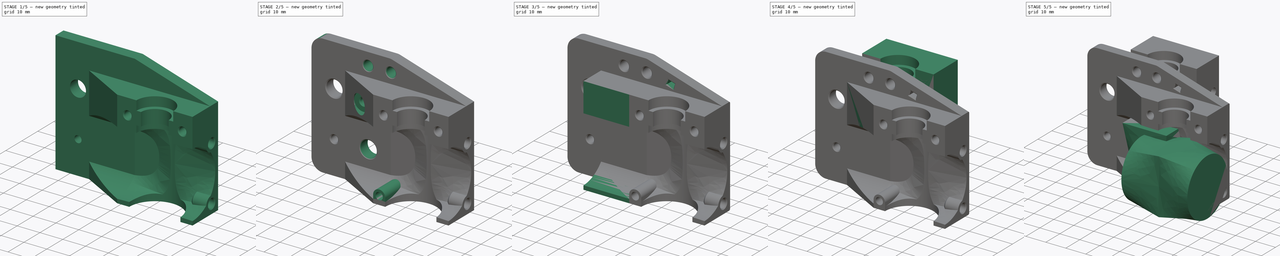
[diagram: build sequence overview — one tinted view per stage of 5, left to right]
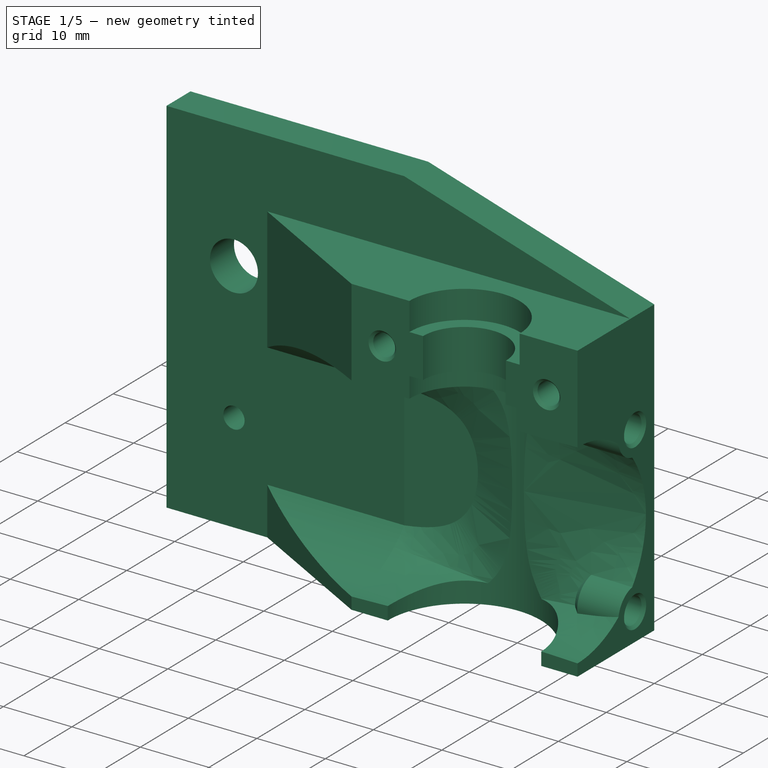
[diagram: stage 1 of 5 — iso view after this stage's code; geometry added in this stage tinted green]
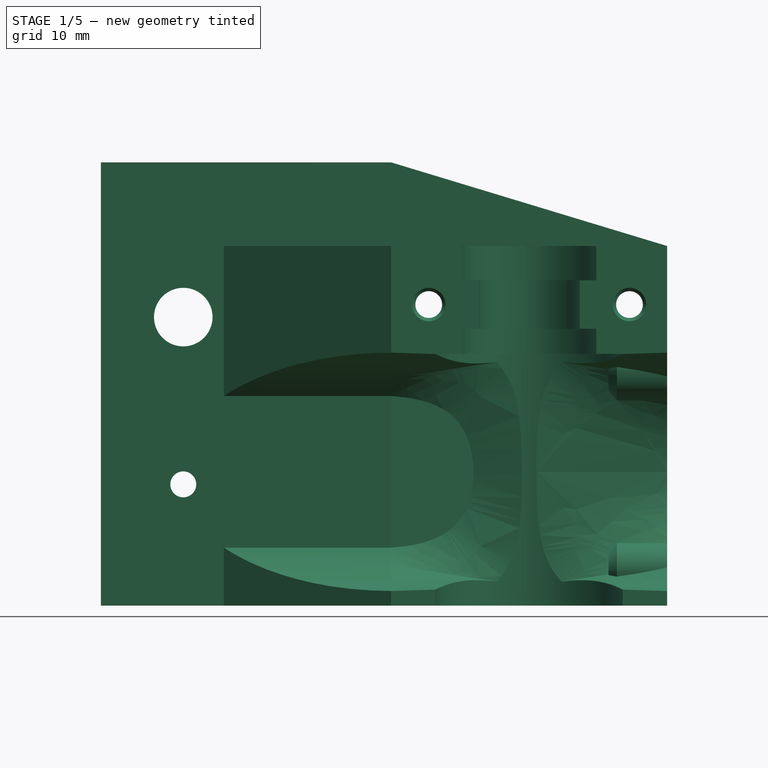
[diagram: stage 1 of 5 — front view after this stage's code; geometry added in this stage tinted green]
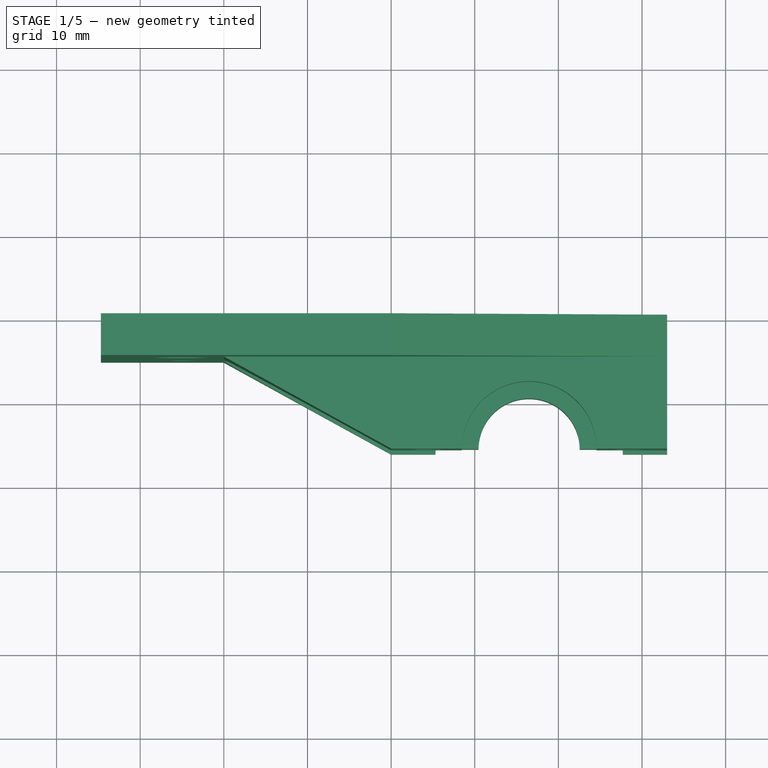
[diagram: stage 1 of 5 — top view after this stage's code; geometry added in this stage tinted green]
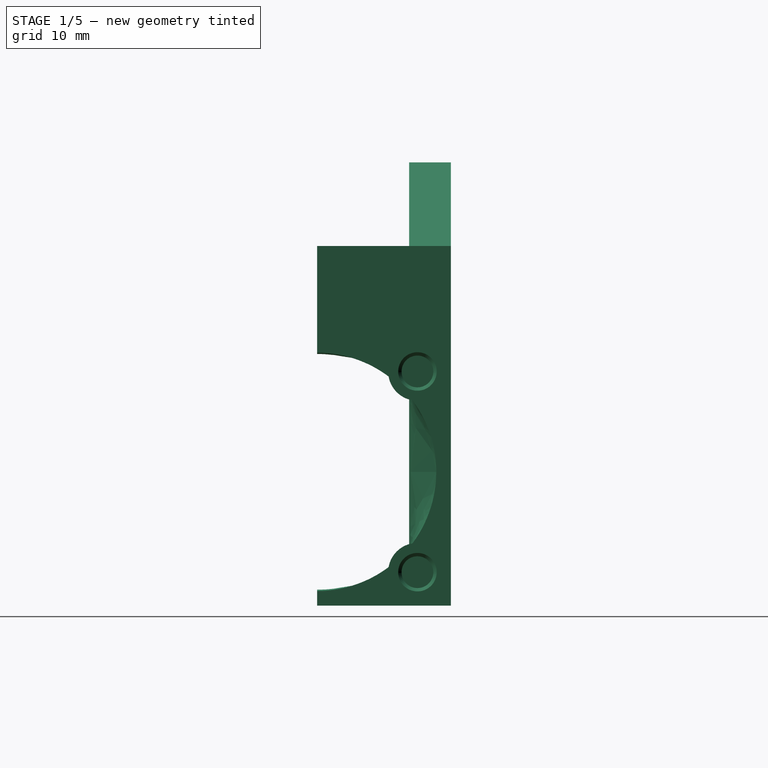
[diagram: stage 1 of 5 — right view after this stage's code; geometry added in this stage tinted green]
FCSTD DOCUMENT  (FreeCAD 0.19R24366 (Git))
Label: back-body-bowden
License: All rights reserved
LicenseURL: http://en.wikipedia.org/wiki/All_rights_reserved
objects: Sketcher::SketchObject×22, PartDesign::Pocket×16, Part::Feature×13, PartDesign::Body×7, Part::MultiFuse×5, PartDesign::Chamfer×5, PartDesign::Pad×4, PartDesign::FeatureBase×4, Part::Box×4, PartDesign::Plane×2, Part::Cut×2, Part::Chamfer×2, App::Part×1, PartDesign::AdditiveLoft×1, Part::Cylinder×1, PartDesign::Fillet×1
note: 116 computed .brp shape members not serialized (recipe doc carries the construction recipe); baked Part::Feature solids carry a one-line shape summary decoded from their .brp

FEATURE [PartDesign::Body] Body002002002
  BaseFeature = -> Body002002001
  Group = -> [BaseFeature001,Sketch015,Pocket006,Sketch016,Pocket007,Chamfer001]
  Origin = -> Origin012
  Placement = pos=(16.5,-16,-11) rot=(0,0,1;0rad)
  Tip = -> Chamfer001
FEATURE [Sketcher::SketchObject] Sketch017
  FullyConstrained = true
  MapMode = 5
  Placement = pos=(0,0,0) rot=(1,0,0;1.5708rad)
  Support = -> [XZ_Plane013]
  sketch-geometry (8):
    g0: LineSegment StartX=0 StartY=-11 StartZ=0 EndX=-34.7 EndY=-11 EndZ=0
    g1: LineSegment StartX=-34.7 StartY=-11 StartZ=0 EndX=-34.7 EndY=42 EndZ=0
    g2: LineSegment StartX=-34.7 StartY=42 StartZ=0 EndX=0 EndY=42 EndZ=0
    g3: LineSegment StartX=0 StartY=42 StartZ=0 EndX=0 EndY=-11 EndZ=0
    g4: Circle CenterX=-24.85 CenterY=23.5 CenterZ=0 NormalX=0 NormalY=0 NormalZ=1 AngleXU=0 Radius=3.5
    g5: Circle CenterX=-9.85 CenterY=23.5 CenterZ=0 NormalX=0 NormalY=0 NormalZ=1 AngleXU=0 Radius=1.55
    g6: Circle CenterX=-24.85 CenterY=3.5 CenterZ=0 NormalX=0 NormalY=0 NormalZ=1 AngleXU=0 Radius=1.55
    g7: Circle CenterX=-9.85 CenterY=3.5 CenterZ=0 NormalX=0 NormalY=0 NormalZ=1 AngleXU=0 Radius=3.5
  constraints (24):
    c: Coincident(g0,g1)
    c: Coincident(g1,g2)
    c: Coincident(g2,g3)
    c: Coincident(g3,g0)
    c: Horizontal(g0)
    c: Horizontal(g2)
    c: Vertical(g1)
    c: Vertical(g3)
    c: PointOnObject(g0,g-2)
    c: Vertical(g6,g4)
    c: Vertical(g7,g5)
    c: Horizontal(g4,g5)
    c: Horizontal(g6,g7)
    c: Equal(g4,g7)
    c: Equal(g6,g5)
    c: DistanceX(g4,g5) = 15
    c: DistanceY(g6,g4) = 20
    c: DistanceY(g-1,g7) = 3.5
    c: DistanceX(g7,g-1) = 9.85
    c: DistanceX(g2,g2) = 34.7
    c: DistanceY(g0,g-1) = 11
    c: DistanceY(g-1,g2) = 42
    c: Radius(g5) = 1.55
    c: Radius(g4) = 3.5
FEATURE [PartDesign::Pad] Pad002
  Direction = (1,1,1)
  Length = 5
  Length2 = 100
  Placement = pos=(0,0,0) rot=(1,0,0;1.5708rad)
  Profile = -> Sketch017
  Type = 0
FEATURE [PartDesign::Body] Body002002003
  Group = -> [Sketch017,Pad002]
  Origin = -> Origin013
  Tip = -> Pad002
FEATURE [Part::Feature] Body002002002001
  Placement = pos=(16.5,-16,-11) rot=(0,0,1;0rad)
  shape: bbox 33 x 27 x 43 mm, 51 faces (baked)
FEATURE [Part::MultiFuse] Fusion002
  Shapes = -> [Body002002003,Body002002002001]
FEATURE [Part::Box] Box  label="Cube"
  AttacherType = Attacher::AttachEngine3D
  Height = 19
  Length = 15
  Placement = pos=(0,-5,-4.5) rot=(0,0,1;0rad)
  Width = 5
FEATURE [Part::Chamfer] Chamfer002
  Base = -> Box
  Edges = 1 edges: [Edge5 r1=2 r2=14.99]
FEATURE [Part::MultiFuse] Fusion003
  Shapes = -> [Chamfer002,Fusion002]
FEATURE [PartDesign::Body] Body002002002002  label="side-dupporter"
  BaseFeature = -> Fusion004
  Group = -> [BaseFeature002,Sketch018,Pocket008]
  Origin = -> Origin014
  Tip = -> Pocket008
FEATURE [Part::Feature] Body002002002002001  label="side-dupporter001"
  shape: bbox 20 x 16 x 43 mm, 16 faces (baked)
FEATURE [Part::Box] Box003  label="Cube003"
  AttacherType = Attacher::AttachEngine3D
  Height = 11
  Length = 34
  Placement = pos=(-1,-5,31) rot=(0,0,1;0rad)
  Width = 5
FEATURE [Part::Chamfer] Chamfer003
  Base = -> Box003
  Edges = 1 edges: [Edge6 r1=10 r2=33]
FEATURE [Part::MultiFuse] Fusion005
  Refine = true
  Shapes = -> [Fusion003,Body002002002002001,Chamfer003]
FEATURE [PartDesign::FeatureBase] BaseFeature003
  BaseFeature = -> Fusion005
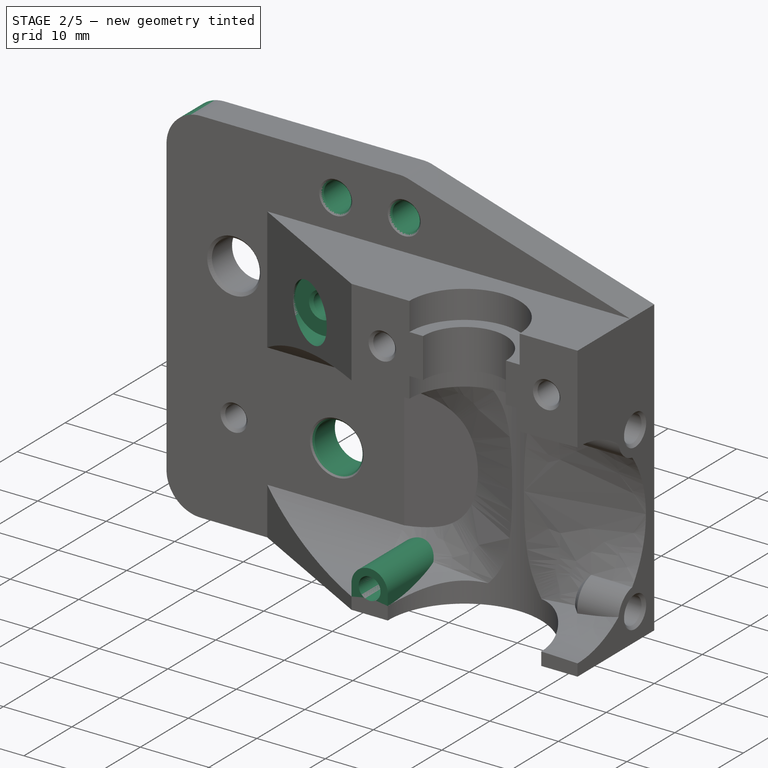
[diagram: stage 2 of 5 — iso view after this stage's code; geometry added in this stage tinted green]
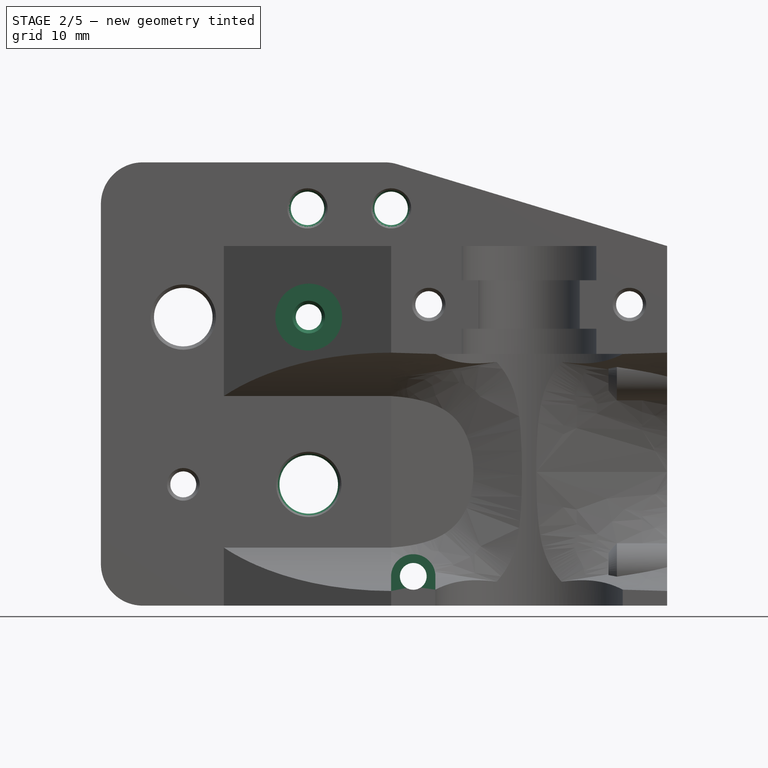
[diagram: stage 2 of 5 — front view after this stage's code; geometry added in this stage tinted green]
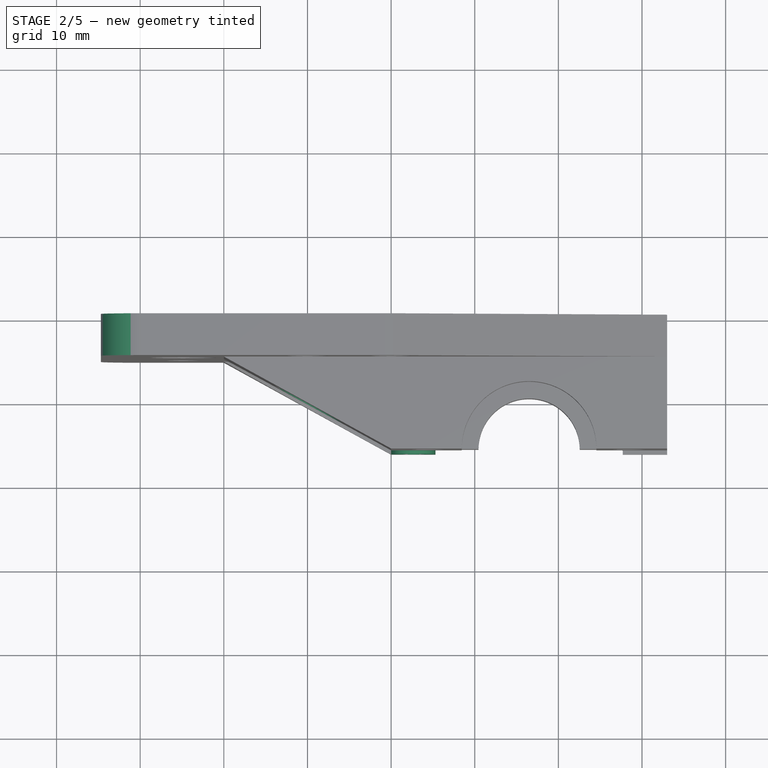
[diagram: stage 2 of 5 — top view after this stage's code; geometry added in this stage tinted green]
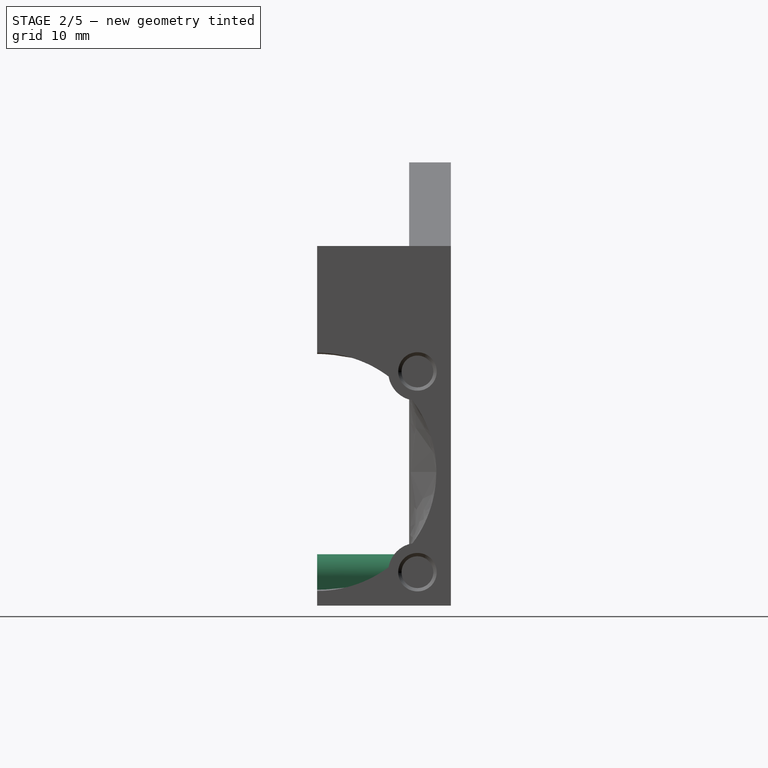
[diagram: stage 2 of 5 — right view after this stage's code; geometry added in this stage tinted green]
FEATURE [Sketcher::SketchObject] Sketch019
  ExternalGeometry = -> [BaseFeature003]
  FullyConstrained = true
  MapMode = 5
  Placement = pos=(0,0,0) rot=(0,0.707107,0.707107;3.14159rad)
  Support = -> [BaseFeature003]
  sketch-geometry (2):
    g0: Circle CenterX=9.85 CenterY=23.5 CenterZ=0 NormalX=0 NormalY=0 NormalZ=1 AngleXU=0 Radius=1.55
    g1: Circle CenterX=9.85 CenterY=3.5 CenterZ=0 NormalX=0 NormalY=0 NormalZ=1 AngleXU=0 Radius=3.5
  constraints (6):
    c: Vertical(g1,g0)
    c: Horizontal(g0,g-3)
    c: Horizontal(g1,g-4)
    c: Equal(g1,g-3)
    c: Equal(g0,g-4)
    c: DistanceX(g0,g-3) = 15
FEATURE [PartDesign::Pocket] Pocket009
  BaseFeature = -> BaseFeature003
  Length = 5
  Length2 = 100
  Profile = -> Sketch019
  Type = 1
FEATURE [PartDesign::Plane] DatumPlane001
  AttachmentOffset = pos=(0,0,8) rot=(0,0,1;0rad)
  Length = 81.1698
  MapMode = 5
  Placement = pos=(0,-8,-1.8e-15) rot=(1,0,0;1.5708rad)
  ResizeMode = 0
  Support = -> [XZ_Plane015]
  Width = 80.4698
FEATURE [Sketcher::SketchObject] Sketch020
  ExternalGeometry = -> [Pocket009]
  FullyConstrained = true
  MapMode = 5
  Placement = pos=(0,-8,-1.8e-15) rot=(1,0,0;1.5708rad)
  Support = -> [DatumPlane001]
  sketch-geometry (1):
    g0: Circle CenterX=-9.85 CenterY=23.5 CenterZ=0 NormalX=0 NormalY=0 NormalZ=1 AngleXU=0 Radius=4
  constraints (2):
    c: Coincident(g0,g-3)
    c: Radius(g0) = 4
FEATURE [PartDesign::Pocket] Pocket010
  BaseFeature = -> Pocket009
  Length = 5
  Length2 = 100
  Profile = -> Sketch020
  Reversed = true
  Type = 1
FEATURE [Sketcher::SketchObject] Sketch021
  ExternalGeometry = -> [Pocket010]
  FullyConstrained = true
  MapMode = 5
  Placement = pos=(0,-16,3.5e-15) rot=(1,0,0;1.5708rad)
  Support = -> [Pocket010]
  sketch-geometry (4):
    g0: ArcOfCircle CenterX=2.65 CenterY=-7.5 CenterZ=0 NormalX=0 NormalY=0 NormalZ=1 AngleXU=0 Radius=2.65 StartAngle=0 EndAngle=3.14159
    g1: LineSegment StartX=0 StartY=-7.5 StartZ=0 EndX=0 EndY=-11 EndZ=0
    g2: LineSegment StartX=0 StartY=-11 StartZ=0 EndX=5.3 EndY=-11 EndZ=0
    g3: LineSegment StartX=5.3 StartY=-11 StartZ=0 EndX=5.3 EndY=-7.5 EndZ=0
  constraints (12):
    c: PointOnObject(g0,g-2)
    c: Horizontal(g0,g0)
    c: Horizontal(g0,g0)
    c: Tangent(g0,g1) = -1.5708
    c: Coincident(g1,g2)
    c: PointOnObject(g2,g-3)
    c: Horizontal(g2)
    c: Coincident(g2,g3)
    c: Coincident(g3,g0)
    c: Vertical(g3)
    c: DistanceY(g0,g-1) = 7.5
    c: DistanceX(g2,g2) = 5.3
FEATURE [PartDesign::Pad] Pad003
  BaseFeature = -> Pocket010
  Direction = (1,1,1)
  Length = 10
  Length2 = 100
  Profile = -> Sketch021
  Reversed = true
  Type = 3
  UpToFace = -> Pocket010 [Face4]
FEATURE [Sketcher::SketchObject] Sketch022
  ExternalGeometry = -> [Pad003]
  FullyConstrained = true
  MapMode = 5
  Placement = pos=(0,-16,0) rot=(1,0,0;1.5708rad)
  Support = -> [Pad003]
  sketch-geometry (1):
    g0: Circle CenterX=2.65 CenterY=-7.5 CenterZ=0 NormalX=0 NormalY=0 NormalZ=1 AngleXU=0 Radius=1.6
  constraints (2):
    c: Coincident(g0,g-3)
    c: Radius(g0) = 1.6
FEATURE [PartDesign::Pocket] Pocket011
  BaseFeature = -> Pad003
  Length = 5
  Length2 = 100
  Profile = -> Sketch022
  Type = 1
FEATURE [Sketcher::SketchObject] Sketch023
  ExternalGeometry = -> [Pocket011]
  FullyConstrained = true
  MapMode = 5
  Placement = pos=(0,0,0) rot=(0,0.707107,0.707107;3.14159rad)
  Support = -> [Pocket011]
  sketch-geometry (1):
    g0: Circle CenterX=-2.65 CenterY=-7.5 CenterZ=0 NormalX=0 NormalY=0 NormalZ=1 AngleXU=0 Radius=2
  constraints (2):
    c: Coincident(g0,g-3)
    c: Radius(g0) = 2
FEATURE [PartDesign::Pocket] Pocket012
  BaseFeature = -> Pocket011
  Length = 5
  Length2 = 100
  Profile = -> Sketch023
  Type = 0
FEATURE [PartDesign::Chamfer] Chamfer004
  Angle = 45
  Base = -> Pocket012 [Edge21]
  BaseFeature = -> Pocket012
  ChamferType = 0
  FlipDirection = false
  Size = 0.4
  Size2 = 1
  SupportTransform = false
FEATURE [PartDesign::Fillet] Fillet
  Base = -> Chamfer004 [Edge18,Edge17,Edge27]
  BaseFeature = -> Chamfer004
  Radius = 5
  Refine = true
  SupportTransform = false
FEATURE [Sketcher::SketchObject] Sketch024
  FullyConstrained = true
  MapMode = 5
  Placement = pos=(-6e-16,-5,9e-16) rot=(1,0,0;1.5708rad)
  Support = -> [Fillet]
  sketch-geometry (2):
    g0: Circle CenterX=-10 CenterY=36.5 CenterZ=0 NormalX=0 NormalY=0 NormalZ=1 AngleXU=0 Radius=2
    g1: Circle CenterX=0 CenterY=36.5 CenterZ=0 NormalX=0 NormalY=0 NormalZ=1 AngleXU=0 Radius=2
  constraints (6):
    c: Equal(g1,g0)
    c: Horizontal(g0,g1)
    c: Radius(g1) = 2
    c: DistanceY(g-1,g1) = 36.5
    c: DistanceX(g1,g-1) = 0
    c: DistanceX(g0,g1) = 10
FEATURE [PartDesign::Pocket] Pocket013
  BaseFeature = -> Fillet
  Length = 5
  Length2 = 100
  Profile = -> Sketch024
  Type = 1
FEATURE [PartDesign::Chamfer] Chamfer005
  Angle = 45
  Base = -> Pocket013 [Edge51,Edge57,Edge53,Edge55,Edge58,Edge60,Edge12,Edge9,Edge10,Edge11]
  BaseFeature = -> Pocket013
  ChamferType = 0
  FlipDirection = false
  Size = 0.4
  Size2 = 1
  SupportTransform = false
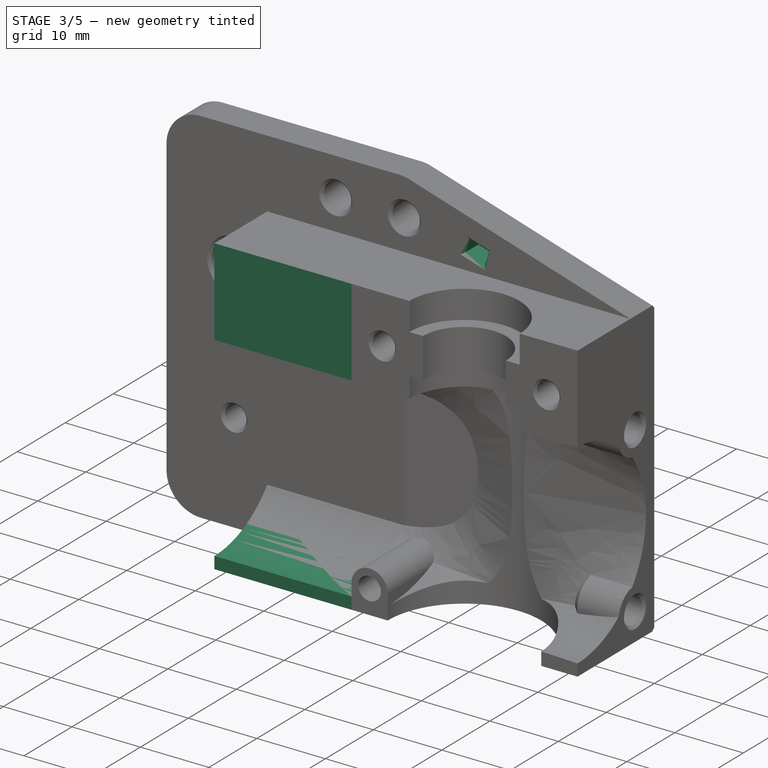
[diagram: stage 3 of 5 — iso view after this stage's code; geometry added in this stage tinted green]
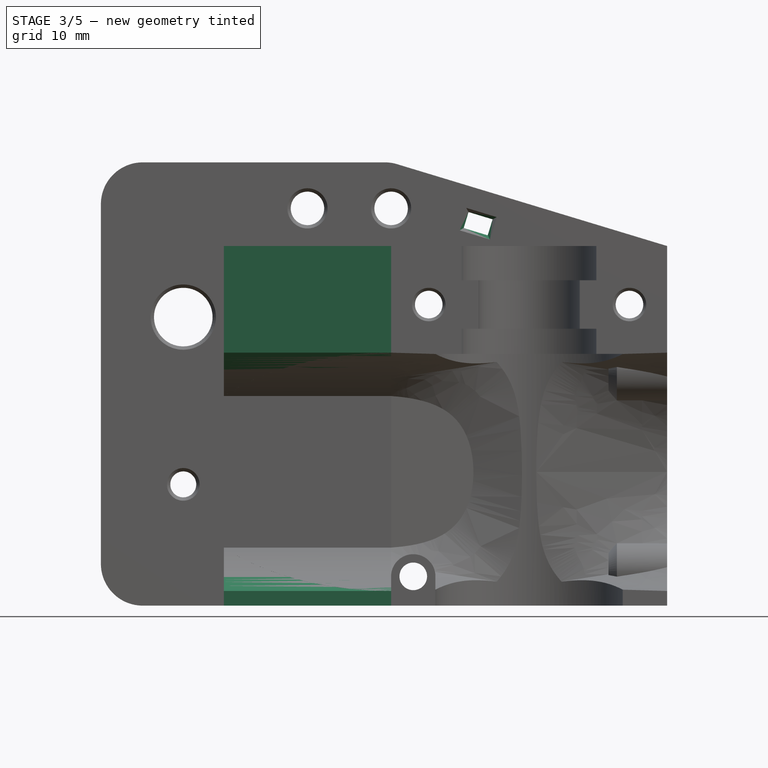
[diagram: stage 3 of 5 — front view after this stage's code; geometry added in this stage tinted green]
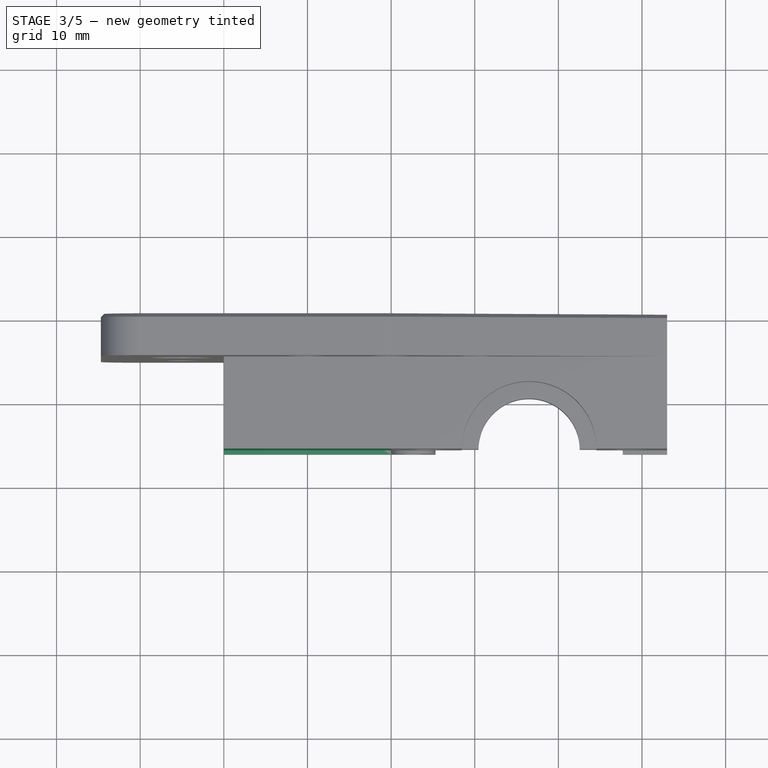
[diagram: stage 3 of 5 — top view after this stage's code; geometry added in this stage tinted green]
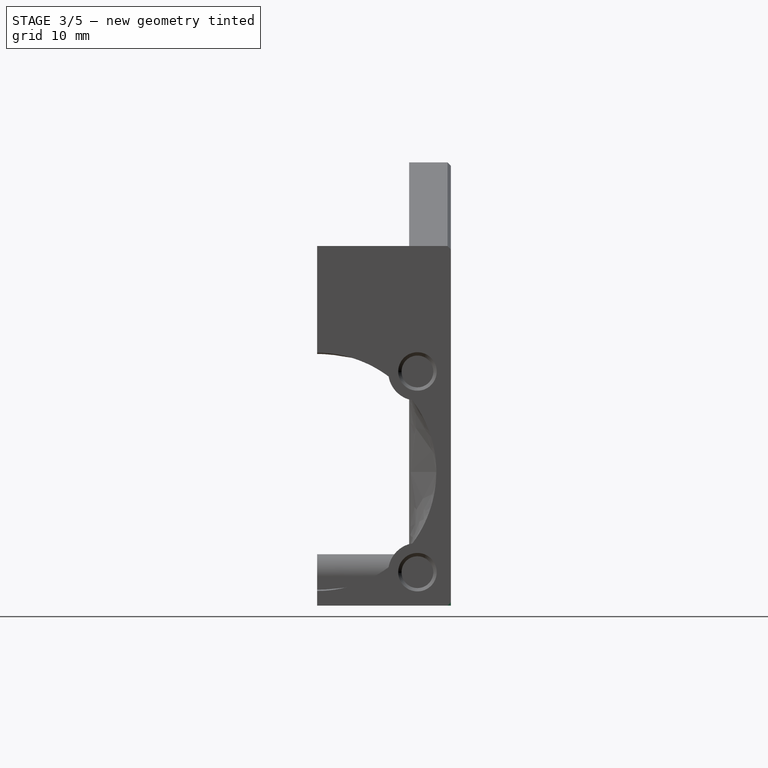
[diagram: stage 3 of 5 — right view after this stage's code; geometry added in this stage tinted green]
FEATURE [Part::Cylinder] Cylinder
  Angle = 180
  AttacherType = Attacher::AttachEngine3D
  Height = 20
  Placement = pos=(-1e-15,-16,5) rot=(0,-1,0;1.5708rad)
  Radius = 14.25
FEATURE [Part::Box] Box001  label="Cube001"
  AttacherType = Attacher::AttachEngine3D
  Height = 43
  Length = 20
  Placement = pos=(-20,-16,-11) rot=(0,0,1;0rad)
  Width = 16
FEATURE [Part::Cut] Cut001
  Base = -> Box001
  Tool = -> Cylinder
FEATURE [Part::Box] Box002  label="Cube002"
  AttacherType = Attacher::AttachEngine3D
  Height = 43
  Length = 20
  Placement = pos=(-20,-5,-11) rot=(0,0,1;0rad)
  Width = 5
FEATURE [Part::MultiFuse] Fusion004  label="side-connector"
  Shapes = -> [Box002,Cut001]
FEATURE [PartDesign::FeatureBase] BaseFeature002
  BaseFeature = -> Fusion004
FEATURE [Sketcher::SketchObject] Sketch035
  ExternalGeometry = -> [Chamfer005]
  FullyConstrained = true
  MapMode = 5
  Placement = pos=(0,-16,3.5e-15) rot=(1,0,0;1.5708rad)
  Support = -> [Chamfer005]
  sketch-geometry (3):
    g0: Circle CenterX=4.5 CenterY=25 CenterZ=0 NormalX=0 NormalY=0 NormalZ=1 AngleXU=0 Radius=1.65
    g1: Circle CenterX=28.5 CenterY=25 CenterZ=0 NormalX=0 NormalY=0 NormalZ=1 AngleXU=0 Radius=1.65
    g2: Circle CenterX=2.65 CenterY=-7.5 CenterZ=0 NormalX=0 NormalY=0 NormalZ=1 AngleXU=0 Radius=1.65
  constraints (6):
    c: Coincident(g0,g-3)
    c: Coincident(g1,g-4)
    c: Equal(g1,g0)
    c: Radius(g1) = 1.65
    c: Coincident(g2,g-5)
    c: Radius(g2) = 1.65
FEATURE [PartDesign::Pocket] Pocket021
  BaseFeature = -> Chamfer005
  Length = 5
  Length2 = 100
  Profile = -> Sketch035
  Type = 1
FEATURE [Sketcher::SketchObject] Sketch038
  ExternalGeometry = -> [Pocket021]
  FullyConstrained = true
  MapMode = 5
  Placement = pos=(-6e-16,-5,9e-16) rot=(1,0,0;1.5708rad)
  Support = -> [Pocket021]
  sketch-geometry (5):
    g0: LineSegment StartX=9.2589 StartY=36.0596 StartZ=0 EndX=12.13 EndY=35.1895 EndZ=0
    g1: LineSegment StartX=12.13 StartY=35.1895 StartZ=0 EndX=11.55 EndY=33.2755 EndZ=0
    g2: LineSegment StartX=11.55 StartY=33.2755 StartZ=0 EndX=8.67889 EndY=34.1455 EndZ=0
    g3: LineSegment StartX=8.67889 StartY=34.1455 StartZ=0 EndX=9.2589 EndY=36.0596 EndZ=0
    g4: LineSegment StartX=12.13 StartY=35.1895 StartZ=0 EndX=13 EndY=38.0606 EndZ=0
  constraints (15):
    c: Coincident(g0,g1)
    c: Coincident(g1,g2)
    c: Coincident(g2,g3)
    c: Coincident(g3,g0)
    c: Parallel(g0,g-3)
    c: Coincident(g4,g0)
    c: PointOnObject(g4,g-3)
    c: Perpendicular(g-3,g4)
    c: Parallel(g1,g4)
    c: Distance(g4) = 3
    c: Distance(g1) = 2
    c: Parallel(g3,g1)
    c: Parallel(g2,g0)
    c: Distance(g0) = 3
    c: DistanceX(g4,g-3) = 20
FEATURE [PartDesign::Pocket] Pocket024
  BaseFeature = -> Pocket021
  Length = 5
  Length2 = 100
  Profile = -> Sketch038
  Type = 1
FEATURE [PartDesign::Chamfer] Chamfer011
  Angle = 45
  Base = -> Pocket024 [Edge8,Edge22,Edge21,Edge20,Edge19,Edge79,Edge77,Edge74,Edge81]
  BaseFeature = -> Pocket024
  ChamferType = 0
  FlipDirection = false
  Size = 0.4
  Size2 = 1
  SupportTransform = false
FEATURE [PartDesign::Body] Body002002002002002  label="back-r1"
  BaseFeature = -> Fusion005
  Group = -> [BaseFeature003,Sketch019,Pocket009,DatumPlane001,Sketch020,Pocket010,Sketch021,Pad003,Sketch022,Pocket011,Sketch023,Pocket012,Chamfer004,Fillet,Sketch024,Pocket013,Chamfer005,Sketch035,Pocket021,Sketch038,Pocket024,Chamfer011]
  Origin = -> Origin015
  Placement = pos=(0,0,11) rot=(0,0,1;0rad)
  Tip = -> Chamfer011
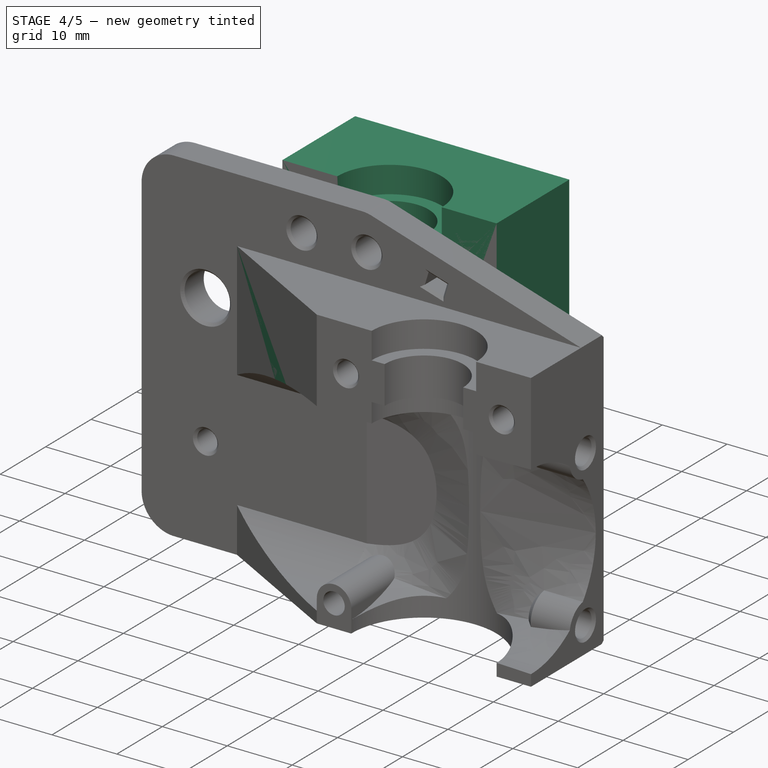
[diagram: stage 4 of 5 — iso view after this stage's code; geometry added in this stage tinted green]
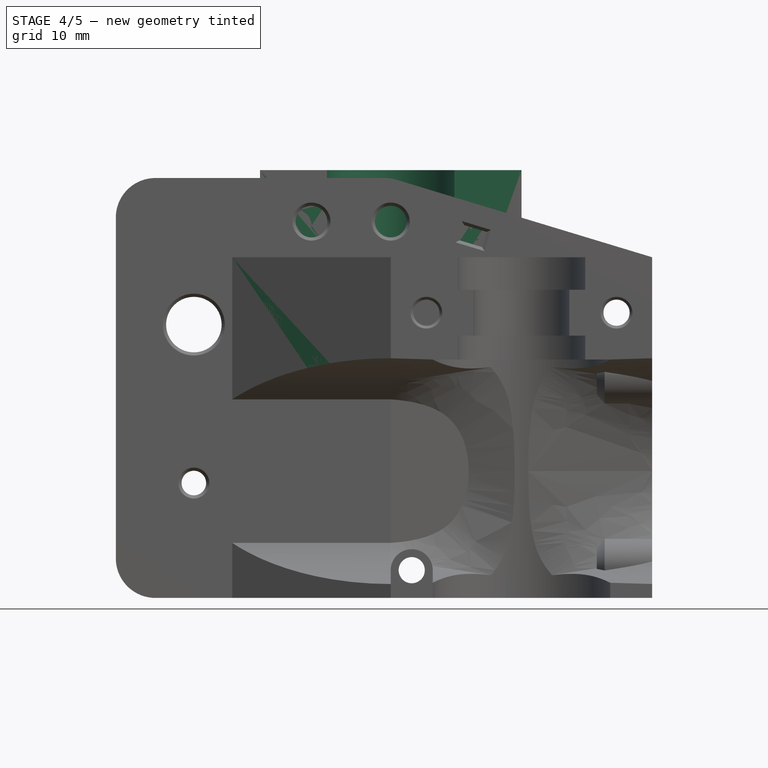
[diagram: stage 4 of 5 — front view after this stage's code; geometry added in this stage tinted green]
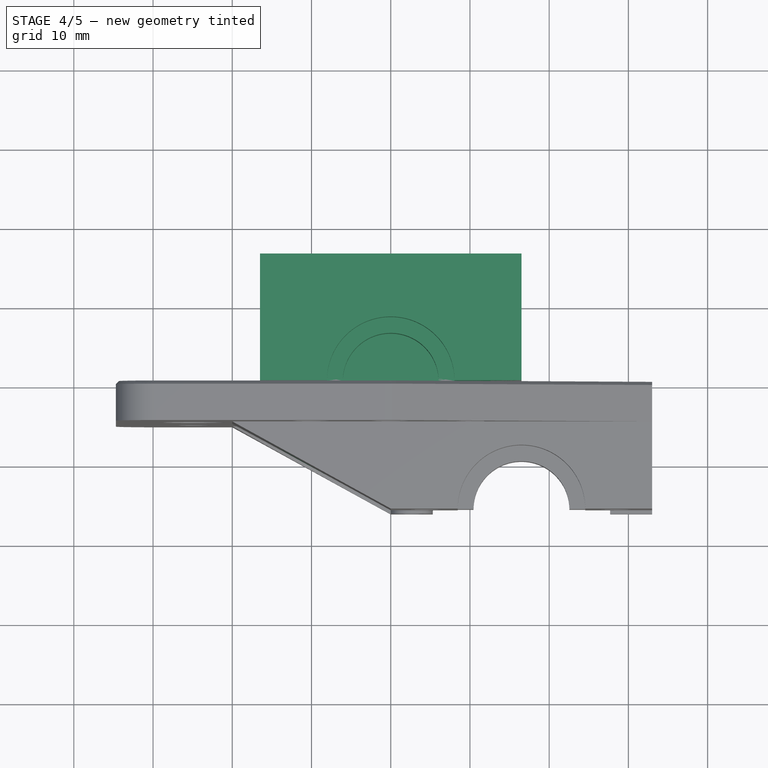
[diagram: stage 4 of 5 — top view after this stage's code; geometry added in this stage tinted green]
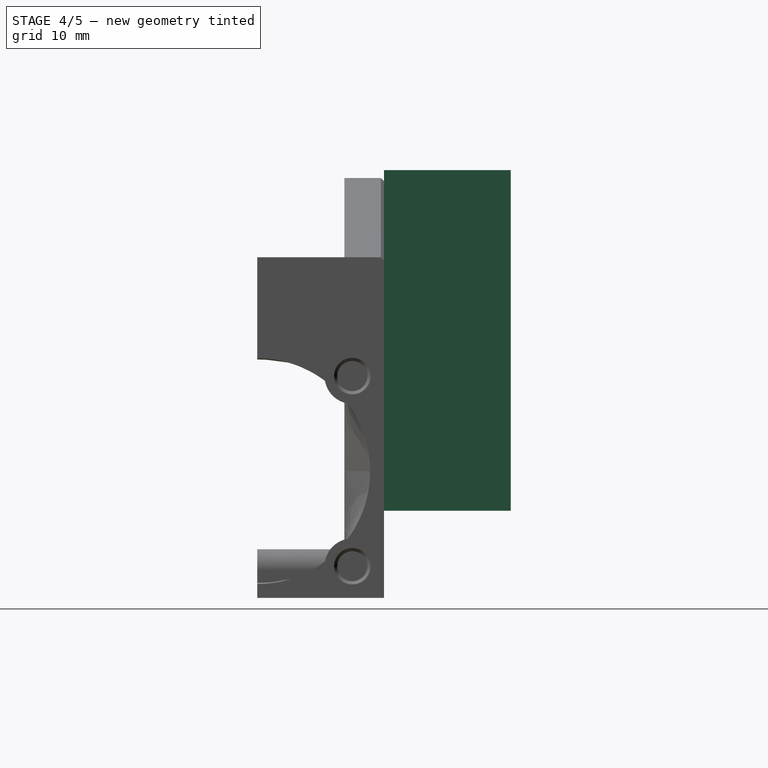
[diagram: stage 4 of 5 — right view after this stage's code; geometry added in this stage tinted green]
FEATURE [Part::Feature] Body002001  label="backup"
  shape: bbox 67.7 x 27 x 53.04 mm, 57 faces (baked)
FEATURE [Sketcher::SketchObject] Sketch
  FullyConstrained = true
  MapMode = 5
  Placement = pos=(0,0,0) rot=(1,0,0;1.5708rad)
  Support = -> [XZ_Plane]
  sketch-geometry (4):
    g0: LineSegment StartX=-16.5 StartY=0 StartZ=0 EndX=16.5 EndY=0 EndZ=0
    g1: LineSegment StartX=16.5 StartY=0 StartZ=0 EndX=16.5 EndY=43 EndZ=0
    g2: LineSegment StartX=16.5 StartY=43 StartZ=0 EndX=-16.5 EndY=43 EndZ=0
    g3: LineSegment StartX=-16.5 StartY=43 StartZ=0 EndX=-16.5 EndY=0 EndZ=0
  constraints (12):
    c: Coincident(g0,g1)
    c: Coincident(g1,g2)
    c: Coincident(g2,g3)
    c: Coincident(g3,g0)
    c: Horizontal(g0)
    c: Horizontal(g2)
    c: Vertical(g1)
    c: Vertical(g3)
    c: PointOnObject(g0,g-1)
    c: DistanceX(g2,g2) = 33
    c: DistanceX(g2,g-1) = 16.5
    c: DistanceY(g1,g1) = 43
FEATURE [PartDesign::Pad] Pad
  Direction = (1,1,1)
  Length = 16
  Length2 = 100
  Placement = pos=(0,0,0) rot=(1,0,0;1.5708rad)
  Profile = -> Sketch
  Reversed = true
  Type = 0
FEATURE [Sketcher::SketchObject] Sketch008
  FullyConstrained = true
  MapMode = 5
  Placement = pos=(0,1.89e-14,43) rot=(0,0,1;3.14159rad)
  Support = -> [Pad]
  sketch-geometry (1):
    g0: Circle CenterX=0 CenterY=0 CenterZ=0 NormalX=0 NormalY=0 NormalZ=1 AngleXU=0 Radius=8.05
  constraints (2):
    c: Coincident(g0,g-1)
    c: Radius(g0) = 8.05
FEATURE [PartDesign::Pocket] Pocket
  BaseFeature = -> Pad
  Length = 4.1
  Length2 = 100
  Placement = pos=(0,0,0) rot=(1,0,0;1.5708rad)
  Profile = -> Sketch008
  Type = 0
FEATURE [Sketcher::SketchObject] Sketch009
  FullyConstrained = true
  MapMode = 5
  Placement = pos=(0,0,38.9) rot=(0,0,1;3.14159rad)
  Support = -> [Pocket]
  sketch-geometry (1):
    g0: Circle CenterX=0 CenterY=0 CenterZ=0 NormalX=0 NormalY=0 NormalZ=1 AngleXU=0 Radius=6.05
  constraints (2):
    c: Coincident(g0,g-1)
    c: Radius(g0) = 6.05
FEATURE [PartDesign::Pocket] Pocket001
  BaseFeature = -> Pocket
  Length = 5.8
  Length2 = 100
  Placement = pos=(0,0,0) rot=(1,0,0;1.5708rad)
  Profile = -> Sketch009
  Type = 0
FEATURE [Sketcher::SketchObject] Sketch010
  FullyConstrained = true
  MapMode = 5
  Placement = pos=(0,0,33.1) rot=(0,0,1;3.14159rad)
  Support = -> [Pocket001]
  sketch-geometry (1):
    g0: Circle CenterX=0 CenterY=0 CenterZ=0 NormalX=0 NormalY=0 NormalZ=1 AngleXU=0 Radius=8.05
  constraints (2):
    c: Coincident(g0,g-1)
    c: Radius(g0) = 8.05
FEATURE [PartDesign::Pocket] Pocket002
  BaseFeature = -> Pocket001
  Length = 3
  Length2 = 100
  Placement = pos=(0,0,0) rot=(1,0,0;1.5708rad)
  Profile = -> Sketch010
  Type = 0
FEATURE [PartDesign::Body] Body002002  label="body-base-second"
  BaseFeature = -> Cut
  Group = -> [BaseFeature,Sketch012,Pad001,Chamfer,Sketch013,Pocket004,Sketch014,Pocket005]
  Origin = -> Origin011
  Tip = -> Pocket005
FEATURE [Part::Feature] Body002002001  label="body-base-second001"
  shape: bbox 33 x 27 x 43 mm, 35 faces (baked)
FEATURE [PartDesign::FeatureBase] BaseFeature001
  BaseFeature = -> Body002002001
FEATURE [Sketcher::SketchObject] Sketch015
  ExternalGeometry = -> [BaseFeature001]
  FullyConstrained = true
  MapMode = 5
  Placement = pos=(0,16,-3.5e-15) rot=(0,0.707107,0.707107;3.14159rad)
  Support = -> [BaseFeature001]
  sketch-geometry (2):
    g0: Circle CenterX=-12 CenterY=36 CenterZ=0 NormalX=0 NormalY=0 NormalZ=1 AngleXU=0 Radius=2
    g1: Circle CenterX=12 CenterY=36 CenterZ=0 NormalX=0 NormalY=0 NormalZ=1 AngleXU=0 Radius=2
  constraints (4):
    c: Coincident(g0,g-3)
    c: Coincident(g1,g-4)
    c: Equal(g0,g1)
    c: Radius(g1) = 2
FEATURE [PartDesign::Pocket] Pocket006
  BaseFeature = -> BaseFeature001
  Length = 6
  Length2 = 100
  Profile = -> Sketch015
  Type = 0
FEATURE [Sketcher::SketchObject] Sketch016
  FullyConstrained = true
  MapMode = 5
  Placement = pos=(0,16,-3.5e-15) rot=(0,0.707107,0.707107;3.14159rad)
  Support = -> [Pocket006]
  sketch-geometry (2):
    g0: Circle CenterX=-6 CenterY=4 CenterZ=0 NormalX=0 NormalY=0 NormalZ=1 AngleXU=0 Radius=2
    g1: Circle CenterX=6 CenterY=4 CenterZ=0 NormalX=0 NormalY=0 NormalZ=1 AngleXU=0 Radius=2
  constraints (6):
    c: Horizontal(g0,g1)
    c: Equal(g1,g0)
    c: DistanceX(g0,g-1) = 6
    c: DistanceX(g-1,g1) = 6
    c: Radius(g1) = 2
    c: DistanceY(g-1,g1) = 4
FEATURE [PartDesign::Pocket] Pocket007
  BaseFeature = -> Pocket006
  Length = 4
  Length2 = 100
  Profile = -> Sketch016
  Type = 0
FEATURE [PartDesign::Chamfer] Chamfer001
  Angle = 45
  Base = -> Pocket007 [Edge47,Edge45,Edge44,Edge46,Edge81,Edge59,Edge23,Edge22]
  BaseFeature = -> Pocket007
  ChamferType = 0
  FlipDirection = false
  Size = 0.4
  Size2 = 1
  SupportTransform = false
FEATURE [Sketcher::SketchObject] Sketch018
  FullyConstrained = true
  MapMode = 5
  Placement = pos=(0,0,-11) rot=(1,0,0;3.14159rad)
  Support = -> [BaseFeature002]
  sketch-geometry (3):
    g0: LineSegment StartX=0 StartY=16 StartZ=0 EndX=-20 EndY=16 EndZ=0
    g1: LineSegment StartX=-20 StartY=16 StartZ=0 EndX=-20 EndY=5 EndZ=0
    g2: LineSegment StartX=-20 StartY=5 StartZ=0 EndX=0 EndY=16 EndZ=0
  constraints (9):
    c: PointOnObject(g0,g-2)
    c: Coincident(g0,g1)
    c: Vertical(g1)
    c: Coincident(g1,g2)
    c: Coincident(g2,g0)
    c: Horizontal(g0)
    c: DistanceY(g1,g1) = 11
    c: DistanceY(g-1,g1) = 5
    c: DistanceX(g0,g0) = 20
FEATURE [PartDesign::Pocket] Pocket008
  BaseFeature = -> BaseFeature002
  Length = 5
  Length2 = 100
  Profile = -> Sketch018
  Type = 1
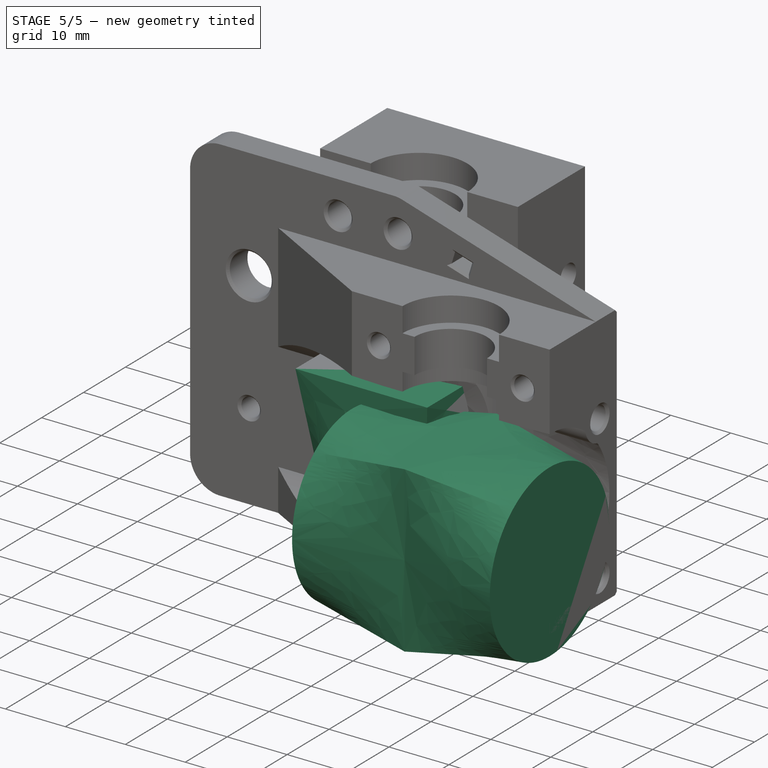
[diagram: stage 5 of 5 — iso view after this stage's code; geometry added in this stage tinted green]
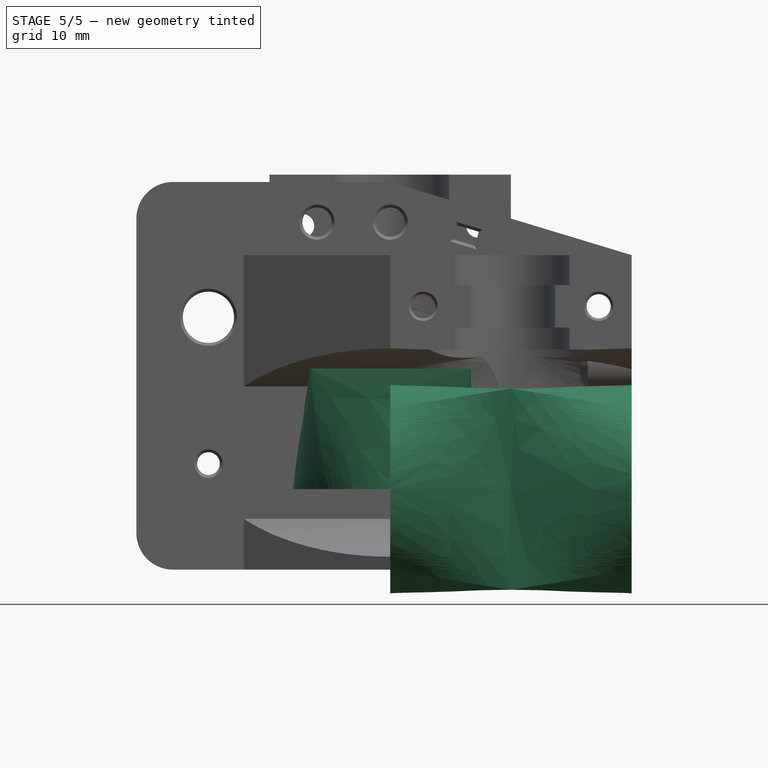
[diagram: stage 5 of 5 — front view after this stage's code; geometry added in this stage tinted green]
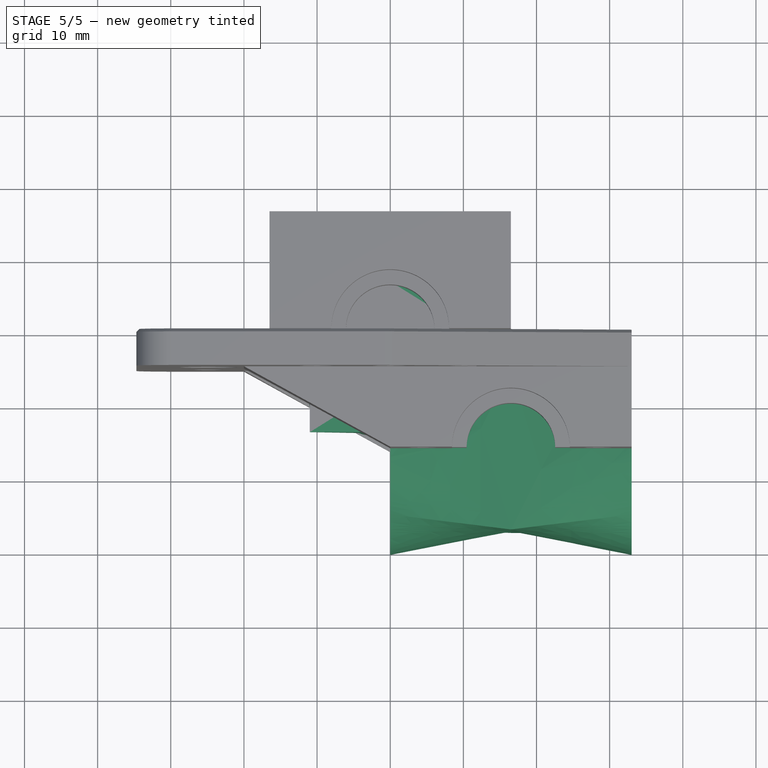
[diagram: stage 5 of 5 — top view after this stage's code; geometry added in this stage tinted green]
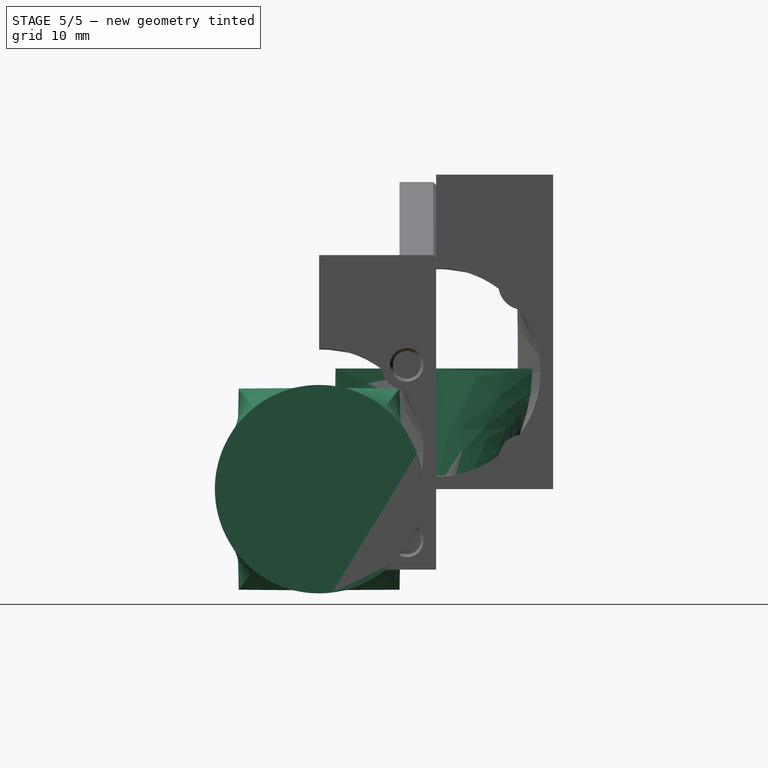
[diagram: stage 5 of 5 — right view after this stage's code; geometry added in this stage tinted green]
FEATURE [Part::Feature] Part__Feature026  label="break"
  Placement = pos=(4e-15,-3.6e-14,15) rot=(1,0,0;3.14159rad)
  shape: bbox 6.884 x 6.884 x 22.1 mm, 15 faces (baked)
FEATURE [Part::Feature] Part__Feature028  label="nozzle"
  Placement = pos=(7e-15,-3.6e-14,-7) rot=(1,0,0;3.14159rad)
  shape: bbox 7 x 8.083 x 12.5 mm, 18 faces (baked)
FEATURE [Part::Feature] Part__Feature025  label="ptfe"
  Placement = pos=(4e-15,-3.6e-14,9.6) rot=(0,0,1;0rad)
  shape: bbox 4 x 4 x 50 mm, 6 faces (baked)
FEATURE [Part::Feature] Part__Feature024  label="sink"
  Placement = pos=(0,-4e-15,-1e-15) rot=(0,0,1;0rad)
  shape: bbox 22.3 x 22.3 x 44.7 mm, 70 faces (baked)
FEATURE [Part::Feature] Part__Feature027  label="block"
  Placement = pos=(-15,-8,-14.1) rot=(0,0,1;0rad)
  shape: bbox 23 x 16 x 11.5 mm, 37 faces (baked)
FEATURE [App::Part] e3d_v6_v18  label="e3d_v6 v18"
  Group = -> [Part__Feature024,Part__Feature025,Part__Feature026,Part__Feature027,Part__Feature028]
  Origin = -> Origin009
  Placement = pos=(16.5,-16,-10.7) rot=(0,0,-1;1.5708rad)
FEATURE [Part::Feature] Part__Feature029001  label="3010-fan-rpef"
  Placement = pos=(16.5,15.5,-4e-15) rot=(0.57735,-0.57735,0.57735;4.18879rad)
  shape: bbox 14.39 x 33.61 x 34.2 mm, 46 faces (baked)
FEATURE [Sketcher::SketchObject] Sketch006
  FullyConstrained = true
  MapMode = 5
  Support = -> [XY_Plane010]
  sketch-geometry (1):
    g0: Circle CenterX=0 CenterY=0 CenterZ=0 NormalX=0 NormalY=0 NormalZ=1 AngleXU=0 Radius=14.25
  constraints (2):
    c: Coincident(g0,g-1)
    c: Radius(g0) = 14.25
FEATURE [PartDesign::Plane] DatumPlane
  AttachmentOffset = pos=(0,0,16.5) rot=(0,0,1;0rad)
  Length = 60
  MapMode = 5
  Placement = pos=(0,0,16.5) rot=(0,0,1;0rad)
  ResizeMode = 0
  Support = -> [XY_Plane010]
  Width = 60
FEATURE [Sketcher::SketchObject] Sketch007
  FullyConstrained = true
  MapMode = 5
  Placement = pos=(0,0,16.5) rot=(0,0,1;0rad)
  Support = -> [DatumPlane]
  sketch-geometry (4):
    g0: LineSegment StartX=-11 StartY=13.75 StartZ=0 EndX=11 EndY=13.75 EndZ=0
    g1: LineSegment StartX=11 StartY=13.75 StartZ=0 EndX=11 EndY=-13.75 EndZ=0
    g2: LineSegment StartX=11 StartY=-13.75 StartZ=0 EndX=-11 EndY=-13.75 EndZ=0
    g3: LineSegment StartX=-11 StartY=-13.75 StartZ=0 EndX=-11 EndY=13.75 EndZ=0
  constraints (12):
    c: Coincident(g0,g1)
    c: Coincident(g1,g2)
    c: Coincident(g2,g3)
    c: Coincident(g3,g0)
    c: Horizontal(g0)
    c: Horizontal(g2)
    c: Vertical(g1)
    c: Vertical(g3)
    c: DistanceX(g0,g0) = 22
    c: DistanceY(g3,g3) = 27.5
    c: DistanceY(g-1,g0) = 13.75
    c: DistanceX(g0,g-1) = 11
FEATURE [PartDesign::AdditiveLoft] AdditiveLoft
  Closed = true
  Placement = pos=(0,0,16.5) rot=(0,0,1;0rad)
  Profile = -> Sketch007
  Ruled = true
  Sections = -> [Sketch006]
FEATURE [PartDesign::Body] Body001  label="air-channel"
  Group = -> [Sketch006,DatumPlane,Sketch007,AdditiveLoft]
  Origin = -> Origin010
  Placement = pos=(33,-16,-1) rot=(0.57735,-0.57735,-0.57735;2.0944rad)
  Tip = -> AdditiveLoft
FEATURE [Part::Feature] AdditiveLoft001
  Placement = pos=(16.5,-16,-1) rot=(0.57735,0.57735,-0.57735;4.18879rad)
  shape: bbox 16.5 x 29.15 x 29.45 mm, 7 faces (baked)
FEATURE [Part::Feature] AdditiveLoft002
  Placement = pos=(16.5,-16,-1) rot=(0.57735,-0.57735,0.57735;4.18879rad)
  shape: bbox 16.5 x 29.15 x 29.45 mm, 7 faces (baked)
FEATURE [Part::MultiFuse] Fusion  label="air-channel-cutout"
  Placement = pos=(0,0,1) rot=(0,0,1;0rad)
  Shapes = -> [AdditiveLoft001,AdditiveLoft002]
FEATURE [Sketcher::SketchObject] Sketch011
  FullyConstrained = true
  MapMode = 5
  Placement = pos=(0,0,30.1) rot=(0,0,1;3.14159rad)
  Support = -> [Pocket002]
  sketch-geometry (1):
    g0: Circle CenterX=0 CenterY=0 CenterZ=0 NormalX=0 NormalY=0 NormalZ=1 AngleXU=0 Radius=11.2
  constraints (2):
    c: Coincident(g0,g-1)
    c: Radius(g0) = 11.2
FEATURE [PartDesign::Pocket] Pocket003
  BaseFeature = -> Pocket002
  Length = 2
  Length2 = 100
  Placement = pos=(0,0,0) rot=(1,0,0;1.5708rad)
  Profile = -> Sketch011
  Type = 1
FEATURE [PartDesign::Body] Body
  Group = -> [Sketch,Pad,Sketch008,Pocket,Sketch009,Pocket001,Sketch010,Pocket002,Sketch011,Pocket003]
  Origin = -> Origin
  Tip = -> Pocket003
FEATURE [Part::Feature] Fusion001  label="air-channel-cutout001"
  Placement = pos=(-16.5,16,17) rot=(0,0,1;0rad)
  shape: bbox 33 x 29.81 x 29.45 mm, 12 faces (baked)
FEATURE [Part::Cut] Cut  label="body-base"
  Base = -> Pocket003
  Tool = -> Fusion001
FEATURE [PartDesign::FeatureBase] BaseFeature
  BaseFeature = -> Cut
FEATURE [Sketcher::SketchObject] Sketch012
  ExternalGeometry = -> [BaseFeature]
  FullyConstrained = true
  MapMode = 5
  Placement = pos=(16.5,0,0) rot=(0.57735,0.57735,0.57735;2.0944rad)
  Support = -> [BaseFeature]
  sketch-geometry (2):
    g0: Circle CenterX=12 CenterY=28 CenterZ=0 NormalX=0 NormalY=0 NormalZ=1 AngleXU=0 Radius=3.5
    g1: Circle CenterX=12 CenterY=4 CenterZ=0 NormalX=0 NormalY=0 NormalZ=1 AngleXU=0 Radius=3.5
  constraints (6):
    c: Vertical(g1,g0)
    c: DistanceX(g-3,g0) = 12
    c: DistanceY(g-3,g0) = 12
    c: DistanceY(g1,g0) = 24
    c: Equal(g1,g0)
    c: Radius(g0) = 3.5
FEATURE [PartDesign::Pad] Pad001
  BaseFeature = -> BaseFeature
  Direction = (1,1,1)
  Length = 7
  Length2 = 100
  Profile = -> Sketch012
  Reversed = true
  Type = 0
FEATURE [PartDesign::Chamfer] Chamfer
  Angle = 45
  Base = -> Pad001 [Edge77,Edge79]
  BaseFeature = -> Pad001
  ChamferType = 0
  FlipDirection = false
  Size = 1
  Size2 = 1
  SupportTransform = false
FEATURE [Sketcher::SketchObject] Sketch013
  ExternalGeometry = -> [Chamfer]
  FullyConstrained = true
  MapMode = 5
  Placement = pos=(16.5,0,0) rot=(0.57735,0.57735,0.57735;2.0944rad)
  Support = -> [Chamfer]
  sketch-geometry (2):
    g0: Circle CenterX=12 CenterY=28 CenterZ=0 NormalX=0 NormalY=0 NormalZ=1 AngleXU=0 Radius=1.9
    g1: Circle CenterX=12 CenterY=4 CenterZ=0 NormalX=0 NormalY=0 NormalZ=1 AngleXU=0 Radius=1.9
  constraints (4):
    c: Coincident(g0,g-3)
    c: Coincident(g1,g-4)
    c: Equal(g1,g0)
    c: Radius(g0) = 1.9
FEATURE [PartDesign::Pocket] Pocket004
  BaseFeature = -> Chamfer
  Length = 5
  Length2 = 100
  Profile = -> Sketch013
  Type = 0
FEATURE [Sketcher::SketchObject] Sketch014
  FullyConstrained = true
  MapMode = 5
  Placement = pos=(0,0,0) rot=(1,0,0;1.5708rad)
  Support = -> [Pocket004]
  sketch-geometry (2):
    g0: Circle CenterX=-12 CenterY=36 CenterZ=0 NormalX=0 NormalY=0 NormalZ=1 AngleXU=0 Radius=1.6
    g1: Circle CenterX=12 CenterY=36 CenterZ=0 NormalX=0 NormalY=0 NormalZ=1 AngleXU=0 Radius=1.6
  constraints (6):
    c: Equal(g0,g1)
    c: Horizontal(g1,g0)
    c: Radius(g1) = 1.6
    c: DistanceX(g-1,g1) = 12
    c: DistanceX(g0,g-1) = 12
    c: DistanceY(g-1,g0) = 36
FEATURE [PartDesign::Pocket] Pocket005
  BaseFeature = -> Pocket004
  Length = 5
  Length2 = 100
  Profile = -> Sketch014
  Refine = true
  Type = 1
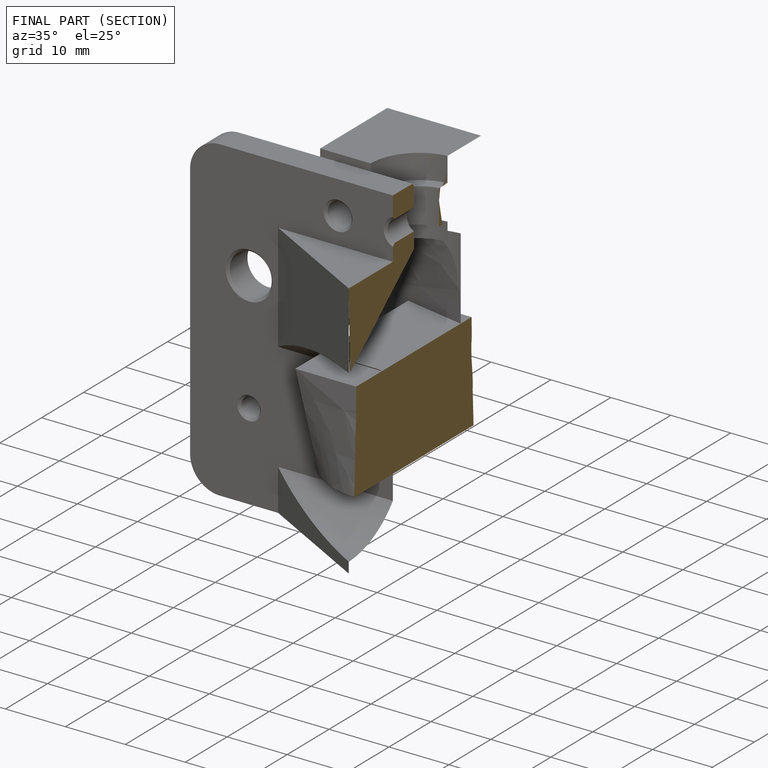
[diagram: finished part — half-section view (interior)]
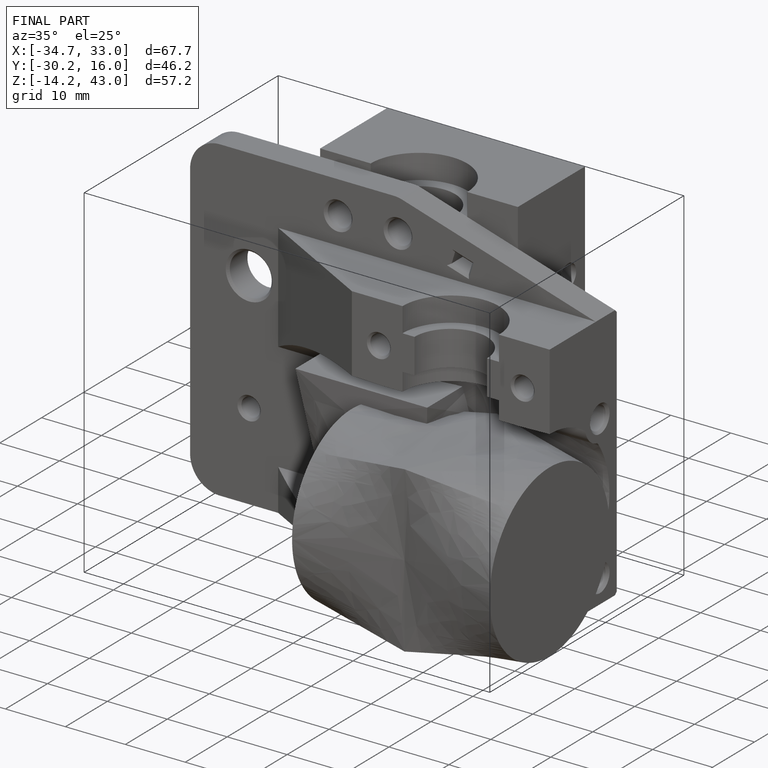
[diagram: finished part — iso view with bounding-box wireframe]
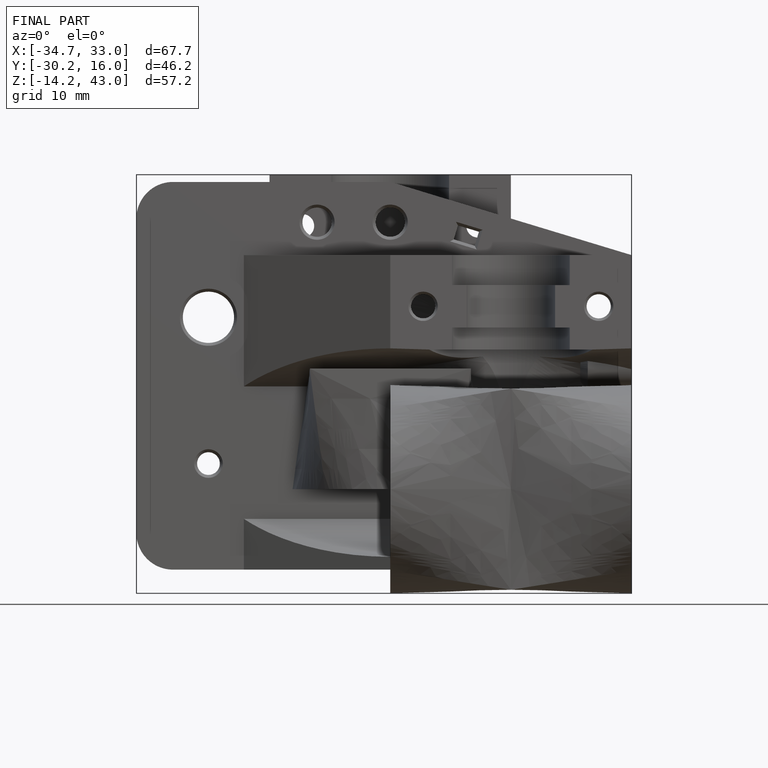
[diagram: finished part — front view with bounding-box wireframe]
